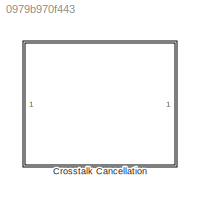
MODEL slx_0979b970f443
KIND library
CONFIG AbsTol = auto
CONFIG EnableMultiTasking = off
CONFIG FixedStep = auto
CONFIG MaxStep = auto
CONFIG MinStep = auto
CONFIG RelTol = 1e-3
CONFIG SampleTimeConstraint = Unconstrained
CONFIG SolverName = VariableStepAuto
CONFIG StartTime = 0.0
CONFIG StopTime = 10.0
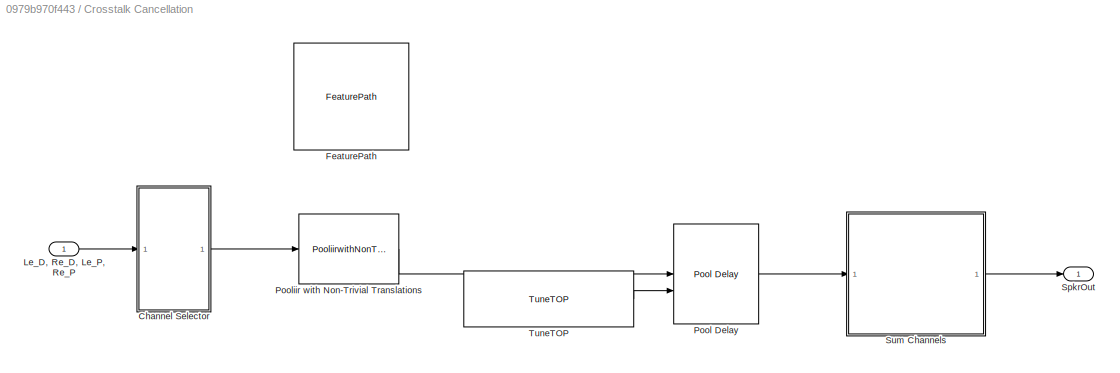
BLOCK [SubSystem] Crosstalk Cancellation
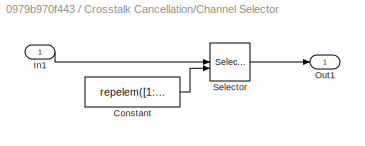
BLOCK [SubSystem] Crosstalk Cancellation/Channel Selector
BLOCK [Constant] Crosstalk Cancellation/Channel Selector/Constant
  Value = repelem([1:configStruct.numHeadrests], configStruct.numFilterPerSpkr)
BLOCK [Inport] Crosstalk Cancellation/Channel Selector/In1
BLOCK [Outport] Crosstalk Cancellation/Channel Selector/Out1
  VectorParamsAs1DForOutWhenUnconnected = off
BLOCK [Selector] Crosstalk Cancellation/Channel Selector/Selector
  IndexOptions = Select all,Index vector (port)
  Indices = [1 3],1
  InputPortWidth = 3
  NumberOfDimensions = 2
  OutputSizes = 1,1
BLOCK [Reference] Crosstalk Cancellation/FeaturePath  REF=FeaturePath/FeaturePath
  SourceBlock = FeaturePath/FeaturePath
  SourceProductName = Bose Talaria
  SourceType = Talaria Feature Path
BLOCK [Inport] Crosstalk Cancellation/Le_D, Re_D, Le_P, Re_P
BLOCK [Reference] Crosstalk Cancellation/Pool Delay  REF=PoolDelay/Pool Delay
  SourceBlock = PoolDelay/Pool Delay
  SourceType = Pool Delay
BLOCK [Reference] Crosstalk Cancellation/Pooliir with Non-Trivial Translations  REF=PooliirLib/PooliirwithNonTrivialTranslations
  SourceBlock = PooliirLib/PooliirwithNonTrivialTranslations
  SourceType = Bose Pool IIR
BLOCK [Outport] Crosstalk Cancellation/SpkrOut
  VectorParamsAs1DForOutWhenUnconnected = off
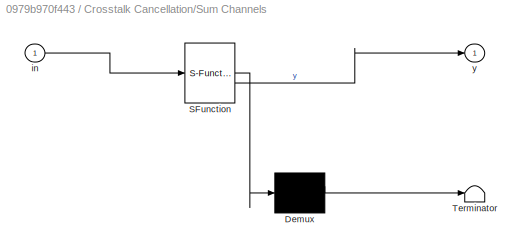
BLOCK [SubSystem] Crosstalk Cancellation/Sum Channels
  ErrorFcn = Stateflow.Translate.translate
  PermitHierarchicalResolution = ExplicitOnly
  Priority = 3
  SFBlockType = MATLAB Function
  TreatAsAtomicUnit = on
BLOCK [Demux] Crosstalk Cancellation/Sum Channels/ Demux 
  Outputs = 1
BLOCK [S-Function] Crosstalk Cancellation/Sum Channels/ SFunction 
  EnableBusSupport = off
  FunctionName = sf_sfun
  Parameters = configStruct
  PortCounts = [1 2]
  SFcnIsStateOwnerBlock = off
  SFunctionDeploymentMode = off
  Tag = Stateflow S-Function 5
BLOCK [Terminator] Crosstalk Cancellation/Sum Channels/ Terminator 
BLOCK [Inport] Crosstalk Cancellation/Sum Channels/in
BLOCK [Outport] Crosstalk Cancellation/Sum Channels/y
  VectorParamsAs1DForOutWhenUnconnected = off
BLOCK [Reference] Crosstalk Cancellation/TuneTOP  REF=TuneVar/TuneTOP
  SourceBlock = TuneVar/TuneTOP
  SourceProductName = Bose Talaria
  SourceType = Talaria Trivial Tune TOP
CHART Crosstalk Cancellation/Sum Channels states=1 transitions=1
  STATE_LABEL 'eML_blk_kernel()'
  STATE_LABEL 'SCRIPT:\nfunction y = sumChannels(in, configStruct)\n\nnumFilters = configStruct.numFilters;\nnumHeadrests = configStruct.numHeadrests;\nnumFilterPerSpkr = configStruct.numFilterPerSpkr;\n\n[frameSize, ~] = size(in);\ny = coder.nullcopy(single(zeros(frameSize, numHeadrests)));\n\nfor i = 1:numHeadrests\n    y(:,i) = sum(in(:,i:numFilterPerSpkr:numFilters),2);\nend\n'
CHART  states=0 transitions=0
